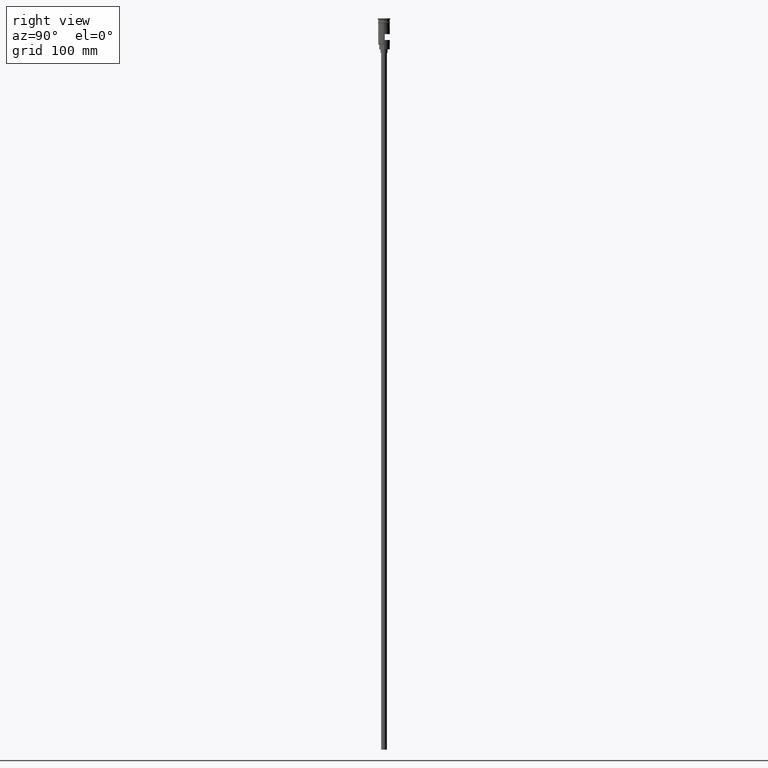
[diagram: clean part render]
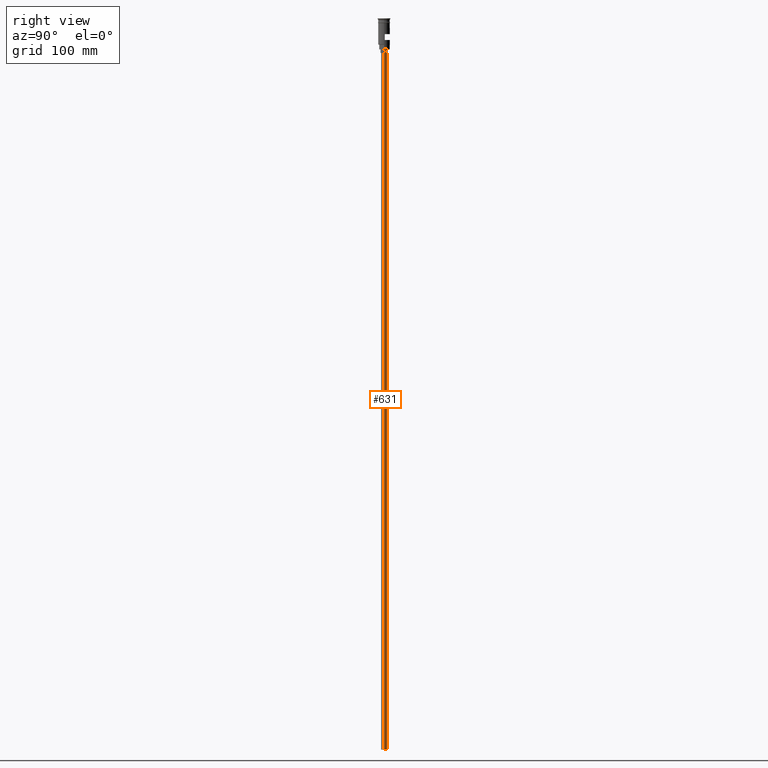
[diagram: same view with one face highlighted and labeled with its STEP entity id]
A machine part, right view. The second image highlights one B-rep face of the part: STEP entity #631.
In plain terms, the highlighted cylindrical surface (edge-blend (fillet) strip) has radius 2.5 mm, axis along (-0, -0, 1).
Its self-contained STEP definition (entity closure, byte-faithful):
#58 = CYLINDRICAL_SURFACE ( 'NONE', #1466, 2.500000000000000000 ) ;
#63 = DIRECTION ( 'NONE',  ( -0.000000000000000000, -0.000000000000000000, 1.000000000000000000 ) ) ;
#74 = CARTESIAN_POINT ( 'NONE',  ( 0.000000000000000000, 0.000000000000000000, -626.5000000000000000 ) ) ;
#130 = CARTESIAN_POINT ( 'NONE',  ( -2.500000000000000000, 3.061616997868383141E-16, -626.5000000000000000 ) ) ;
#152 = VECTOR ( 'NONE', #63, 1000.000000000000000 ) ;
#167 = CARTESIAN_POINT ( 'NONE',  ( -2.500000000000000000, 3.061616997868383141E-16, -626.5000000000000000 ) ) ;
#178 = CARTESIAN_POINT ( 'NONE',  ( 0.000000000000000000, 0.000000000000000000, -626.5000000000000000 ) ) ;
#212 = CARTESIAN_POINT ( 'NONE',  ( 2.500000000000000000, 0.000000000000000000, -29.50000000000000000 ) ) ;
#227 = CIRCLE ( 'NONE', #1183, 2.500000000000000000 ) ;
#249 = CIRCLE ( 'NONE', #682, 2.500000000000000000 ) ;
#284 = FACE_OUTER_BOUND ( 'NONE', #1394, .T. ) ;
#329 = LINE ( 'NONE', #687, #152 ) ;
#389 = ORIENTED_EDGE ( 'NONE', *, *, #1052, .F. ) ;
#399 = CARTESIAN_POINT ( 'NONE',  ( 2.500000000000000000, 0.000000000000000000, -626.5000000000000000 ) ) ;
#420 = DIRECTION ( 'NONE',  ( -1.000000000000000000, 0.000000000000000000, 0.000000000000000000 ) ) ;
#542 = EDGE_CURVE ( 'NONE', #1306, #1005, #1240, .T. ) ;
#600 = ORIENTED_EDGE ( 'NONE', *, *, #542, .T. ) ;
#631 = ADVANCED_FACE ( 'NONE', ( #284 ), #58, .T. ) ;
#636 = VECTOR ( 'NONE', #1117, 1000.000000000000000 ) ;
#640 = VERTEX_POINT ( 'NONE', #399 ) ;
#659 = DIRECTION ( 'NONE',  ( 1.000000000000000000, 0.000000000000000000, 0.000000000000000000 ) ) ;
#682 = AXIS2_PLACEMENT_3D ( 'NONE', #74, #927, #1194 ) ;
#687 = CARTESIAN_POINT ( 'NONE',  ( 2.500000000000000000, 0.000000000000000000, -626.5000000000000000 ) ) ;
#927 = DIRECTION ( 'NONE',  ( 0.000000000000000000, 0.000000000000000000, -1.000000000000000000 ) ) ;
#1005 = VERTEX_POINT ( 'NONE', #1053 ) ;
#1020 = VERTEX_POINT ( 'NONE', #212 ) ;
#1022 = EDGE_CURVE ( 'NONE', #1005, #1020, #227, .T. ) ;
#1052 = EDGE_CURVE ( 'NONE', #640, #1020, #329, .T. ) ;
#1053 = CARTESIAN_POINT ( 'NONE',  ( -2.500000000000000000, 3.061616997868383141E-16, -29.50000000000000000 ) ) ;
#1071 = EDGE_CURVE ( 'NONE', #1306, #640, #249, .T. ) ;
#1117 = DIRECTION ( 'NONE',  ( -0.000000000000000000, -0.000000000000000000, 1.000000000000000000 ) ) ;
#1119 = ORIENTED_EDGE ( 'NONE', *, *, #1071, .F. ) ;
#1176 = DIRECTION ( 'NONE',  ( -0.000000000000000000, -0.000000000000000000, 1.000000000000000000 ) ) ;
#1183 = AXIS2_PLACEMENT_3D ( 'NONE', #1564, #1305, #420 ) ;
#1194 = DIRECTION ( 'NONE',  ( -1.000000000000000000, 0.000000000000000000, 0.000000000000000000 ) ) ;
#1240 = LINE ( 'NONE', #130, #636 ) ;
#1305 = DIRECTION ( 'NONE',  ( 0.000000000000000000, 0.000000000000000000, -1.000000000000000000 ) ) ;
#1306 = VERTEX_POINT ( 'NONE', #167 ) ;
#1394 = EDGE_LOOP ( 'NONE', ( #1119, #600, #1481, #389 ) ) ;
#1466 = AXIS2_PLACEMENT_3D ( 'NONE', #178, #1176, #659 ) ;
#1481 = ORIENTED_EDGE ( 'NONE', *, *, #1022, .T. ) ;
#1564 = CARTESIAN_POINT ( 'NONE',  ( 0.000000000000000000, 0.000000000000000000, -29.50000000000000000 ) ) ;